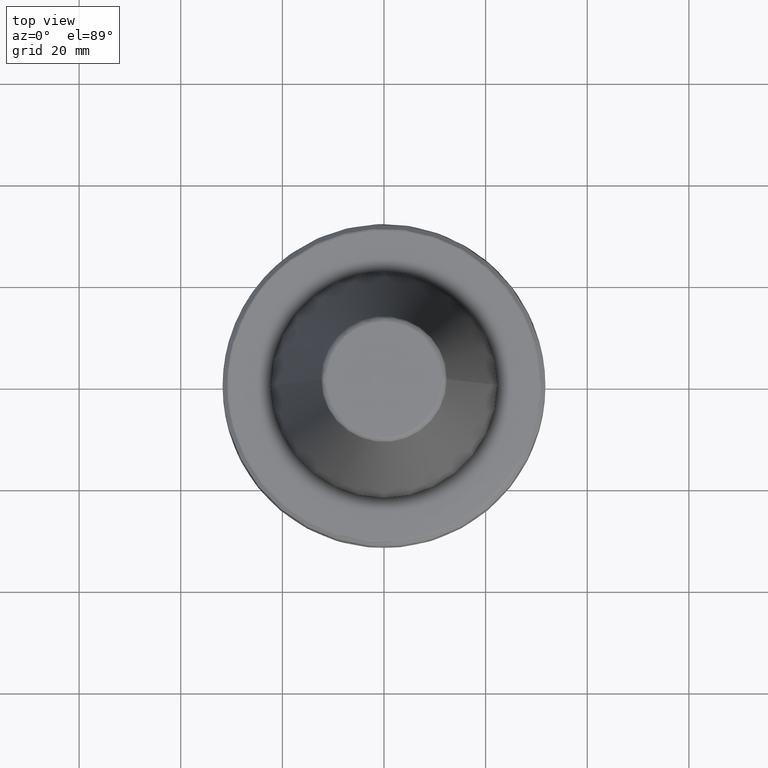
[diagram: clean part render]
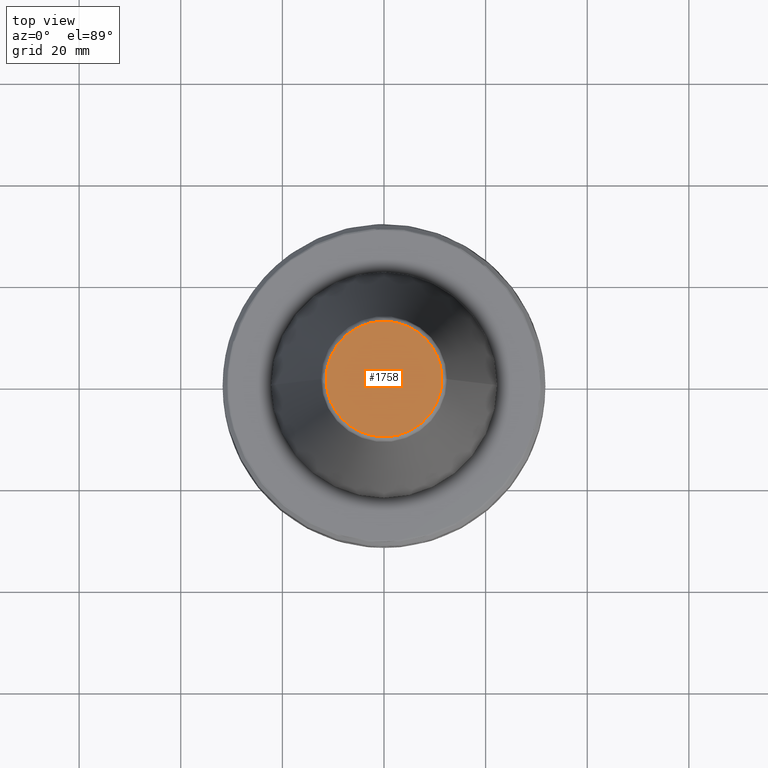
[diagram: same view with one face highlighted and labeled with its STEP entity id]
A machine part, top view. The second image highlights one B-rep face of the part: STEP entity #1758.
In plain terms, the highlighted planar face has unit normal (0, 0, 1).
Its self-contained STEP definition (entity closure, byte-faithful):
#23 = ORIENTED_EDGE ( 'NONE', *, *, #2198, .F. ) ;
#540 = PLANE ( 'NONE',  #2239 ) ;
#728 = CARTESIAN_POINT ( 'NONE',  ( 11.38516258961893100, -22.77032517923785800, 68.39999999999999100 ) ) ;
#746 = ORIENTED_EDGE ( 'NONE', *, *, #953, .F. ) ;
#751 = VERTEX_POINT ( 'NONE', #1384 ) ;
#762 = CARTESIAN_POINT ( 'NONE',  ( 11.38516258961893100, 22.77032517923785800, 68.39999999999999100 ) ) ;
#770 = CARTESIAN_POINT ( 'NONE',  ( -11.38516258961892700, 22.77032517923785800, 68.39999999999999100 ) ) ;
#873 =( BOUNDED_CURVE ( )  B_SPLINE_CURVE ( 3, ( #1638, #728, #2979, #1652 ),
 .UNSPECIFIED., .F., .F. ) 
 B_SPLINE_CURVE_WITH_KNOTS ( ( 4, 4 ),
 ( 0.0000000000000000000, 1.000000000000000000 ),
 .UNSPECIFIED. ) 
 CURVE ( )  GEOMETRIC_REPRESENTATION_ITEM ( )  RATIONAL_B_SPLINE_CURVE ( ( 1.000000000000000000, 0.3333333333333333700, 0.3333333333333333700, 1.000000000000000000 ) ) 
 REPRESENTATION_ITEM ( '' )  );
#953 = EDGE_CURVE ( 'NONE', #1346, #751, #1317, .T. ) ;
#1317 =( BOUNDED_CURVE ( )  B_SPLINE_CURVE ( 3, ( #2674, #770, #762, #1399 ),
 .UNSPECIFIED., .F., .F. ) 
 B_SPLINE_CURVE_WITH_KNOTS ( ( 4, 4 ),
 ( 0.0000000000000000000, 1.000000000000000000 ),
 .UNSPECIFIED. ) 
 CURVE ( )  GEOMETRIC_REPRESENTATION_ITEM ( )  RATIONAL_B_SPLINE_CURVE ( ( 1.000000000000000000, 0.3333333333333333700, 0.3333333333333333700, 1.000000000000000000 ) ) 
 REPRESENTATION_ITEM ( '' )  );
#1346 = VERTEX_POINT ( 'NONE', #2530 ) ;
#1384 = CARTESIAN_POINT ( 'NONE',  ( 11.38516258961893100, 0.0000000000000000000, 68.39999999999999100 ) ) ;
#1399 = CARTESIAN_POINT ( 'NONE',  ( 11.38516258961893100, 0.0000000000000000000, 68.39999999999999100 ) ) ;
#1638 = CARTESIAN_POINT ( 'NONE',  ( 11.38516258961893100, 0.0000000000000000000, 68.39999999999999100 ) ) ;
#1652 = CARTESIAN_POINT ( 'NONE',  ( -11.38516258961893100, 1.418516855507481500E-015, 68.39999999999999100 ) ) ;
#1662 = EDGE_LOOP ( 'NONE', ( #746, #23 ) ) ;
#1758 = ADVANCED_FACE ( 'NONE', ( #2174 ), #540, .T. ) ;
#2174 = FACE_OUTER_BOUND ( 'NONE', #1662, .T. ) ;
#2198 = EDGE_CURVE ( 'NONE', #751, #1346, #873, .T. ) ;
#2239 = AXIS2_PLACEMENT_3D ( 'NONE', #2871, #2874, #2863 ) ;
#2530 = CARTESIAN_POINT ( 'NONE',  ( -11.38516258961893100, 1.418516855507481500E-015, 68.39999999999999100 ) ) ;
#2674 = CARTESIAN_POINT ( 'NONE',  ( -11.38516258961893100, 1.418516855507481500E-015, 68.39999999999999100 ) ) ;
#2863 = DIRECTION ( 'NONE',  ( 1.000000000000000000, 0.0000000000000000000, -0.0000000000000000000 ) ) ;
#2871 = CARTESIAN_POINT ( 'NONE',  ( 0.0000000000000000000, -8.337524199435086500E-014, 68.39999999999999100 ) ) ;
#2874 = DIRECTION ( 'NONE',  ( 0.0000000000000000000, 0.0000000000000000000, 1.000000000000000000 ) ) ;
#2979 = CARTESIAN_POINT ( 'NONE',  ( -11.38516258961893400, -22.77032517923785800, 68.39999999999999100 ) ) ;